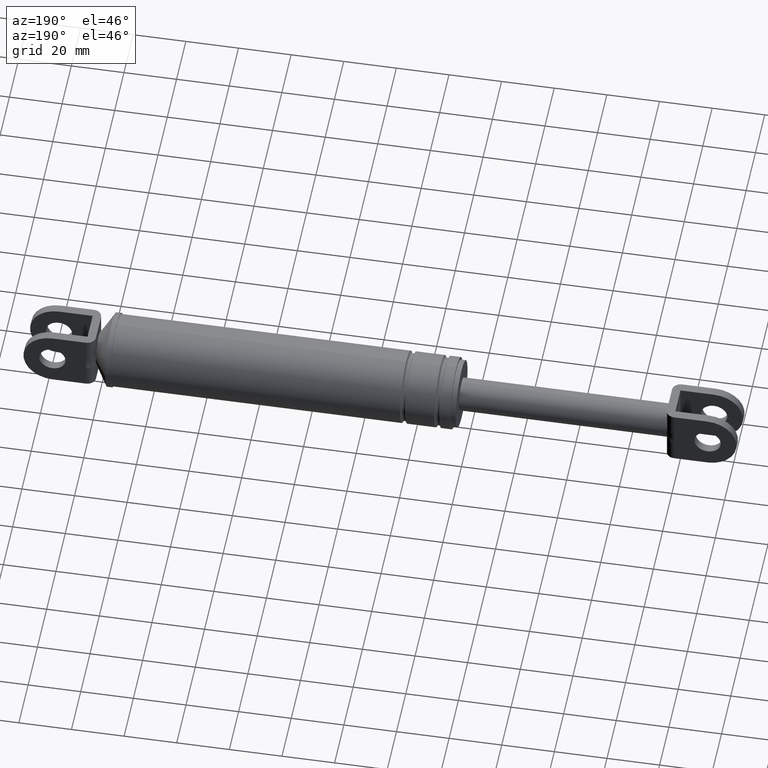
[diagram: clean part render]
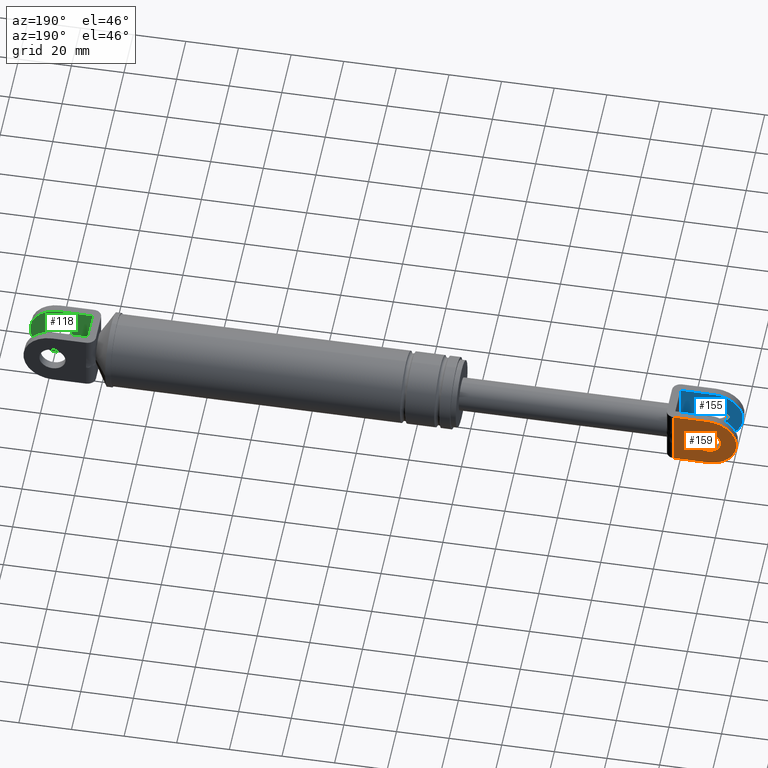
[diagram: same view with three faces highlighted in distinct colors, each labeled with its STEP entity id]
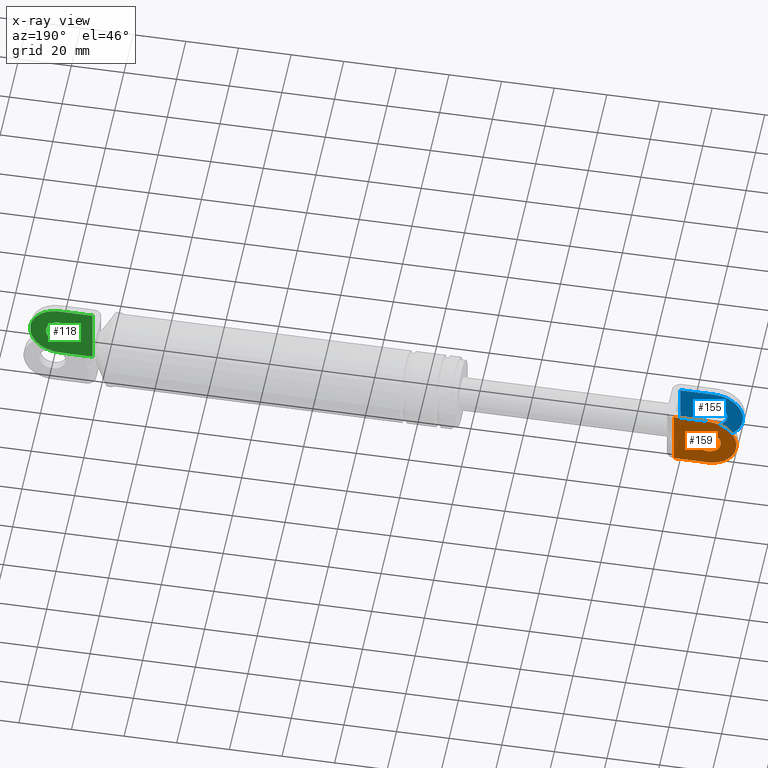
[diagram: x-ray of the same camera — body ghosted, the three highlighted faces saturated]
A machine part, auxiliary view with three faces highlighted in distinct colors.
The next image is the same camera in x-ray (body ghosted, the three faces saturated) — at least one of them is partly hidden behind the body in this view.
Their STEP definitions:

[orange] entity #159 — the highlighted planar face has unit normal (0, -1, 0).
#159=ADVANCED_FACE('',(#654,#655),#653,.F.);
#653=PLANE('',#1265);
#654=FACE_OUTER_BOUND('',#1266,.T.);
#655=FACE_BOUND('',#1267,.T.);
#1262=CARTESIAN_POINT('',(7.50580266010E+001,8.69999700000E+000,1.83929320502E+002));
#1263=DIRECTION('',(0.00000000000E+000,-1.00000000000E+000,0.00000000000E+000));
#1264=DIRECTION('',(0.00000000000E+000,0.00000000000E+000,-1.00000000000E+000));
#1265=AXIS2_PLACEMENT_3D('',#1262,#1263,#1264);
#1266=EDGE_LOOP('',(#1620,#1621,#1622,#1623,#1624,#1625));
#1267=EDGE_LOOP('',(#1626,#1627));
#1620=ORIENTED_EDGE('',*,*,#1808,.T.);
#1621=ORIENTED_EDGE('',*,*,#1837,.T.);
#1622=ORIENTED_EDGE('',*,*,#1838,.T.);
#1623=ORIENTED_EDGE('',*,*,#1839,.T.);
#1624=ORIENTED_EDGE('',*,*,#1834,.F.);
#1625=ORIENTED_EDGE('',*,*,#1840,.F.);
#1626=ORIENTED_EDGE('',*,*,#1841,.T.);
#1627=ORIENTED_EDGE('',*,*,#1842,.T.);
#1808=EDGE_CURVE('',#2583,#2576,#2584,.T.);
#1834=EDGE_CURVE('',#2752,#2759,#2760,.T.);
#1837=EDGE_CURVE('',#2576,#2778,#2779,.T.);
#1838=EDGE_CURVE('',#2778,#2785,#2786,.T.);
#1839=EDGE_CURVE('',#2785,#2759,#2792,.T.);
#1840=EDGE_CURVE('',#2583,#2752,#2798,.T.);
#1841=EDGE_CURVE('',#2804,#2805,#2806,.T.);
#1842=EDGE_CURVE('',#2805,#2804,#2812,.T.);
#2576=VERTEX_POINT('',#3402);
#2583=VERTEX_POINT('',#3407);
#2584=LINE('',#3408,#3409);
#2752=VERTEX_POINT('',#3509);
#2759=VERTEX_POINT('',#3513);
#2760=LINE('',#3514,#3515);
#2778=VERTEX_POINT('',#3524);
#2779=LINE('',#3525,#3526);
#2785=VERTEX_POINT('',#3528);
#2786=(BOUNDED_CURVE() B_SPLINE_CURVE(3,(#3529,#3530,#3531,#3532,#3533,#3534,#3535,#3536,#3537,#3538),.UNSPECIFIED.,.F.,.F.) B_SPLINE_CURVE_WITH_KNOTS((4,2,2,2,4),(0.00000000000E+000,1.48651353192E-003,2.97302706385E-003,4.45954059577E-003,5.94605412770E-003),.UNSPECIFIED.) CURVE() GEOMETRIC_REPRESENTATION_ITEM() RATIONAL_B_SPLINE_CURVE((1.00000000000E+000,1.00000000000E+000,1.00000000000E+000,1.00000000000E+000,1.00000000000E+000,1.00000000000E+000,1.00000000000E+000,1.00000000000E+000,1.00000000000E+000,1.00000000000E+000)) REPRESENTATION_ITEM('') );
#2792=LINE('',#3539,#3540);
#2798=CIRCLE('',#3545,1.10000000000E+001);
#2804=VERTEX_POINT('',#3546);
#2805=VERTEX_POINT('',#3547);
#2806=CIRCLE('',#3551,5.00000000000E+000);
#2812=CIRCLE('',#3555,5.00000000000E+000);
#3402=CARTESIAN_POINT('',(1.01246942787E+002,8.69999700000E+000,1.81729320502E+002));
#3407=CARTESIAN_POINT('',(8.84469418268E+001,8.69999700000E+000,1.81729320502E+002));
#3408=CARTESIAN_POINT('',(8.84469418268E+001,8.69999700000E+000,1.81729320502E+002));
#3409=VECTOR('',#3410,1.28000009599E+001);
#3410=DIRECTION('',(1.00000000000E+000,0.00000000000E+000,0.00000000000E+000));
#3509=CARTESIAN_POINT('',(8.84469418268E+001,8.69999700000E+000,1.59729320502E+002));
#3513=CARTESIAN_POINT('',(1.01246942787E+002,8.69999700000E+000,1.59729320502E+002));
#3514=CARTESIAN_POINT('',(8.84469418268E+001,8.69999700000E+000,1.59729320502E+002));
#3515=VECTOR('',#3516,1.28000009599E+001);
#3516=DIRECTION('',(1.00000000000E+000,0.00000000000E+000,0.00000000000E+000));
#3524=CARTESIAN_POINT('',(1.01246942787E+002,8.69999700000E+000,1.73697911582E+002));
#3525=CARTESIAN_POINT('',(1.01246942787E+002,8.69999700000E+000,1.81729320502E+002));
#3526=VECTOR('',#3527,8.03140892004E+000);
#3527=DIRECTION('',(0.00000000000E+000,0.00000000000E+000,-1.00000000000E+000));
#3528=CARTESIAN_POINT('',(1.01246942787E+002,8.69999700000E+000,1.67760729422E+002));
#3529=CARTESIAN_POINT('',(1.01246942787E+002,8.69999700000E+000,1.73697911582E+002));
#3530=CARTESIAN_POINT('',(1.01246942787E+002,8.69999700000E+000,1.73202405791E+002));
#3531=CARTESIAN_POINT('',(1.01272536968E+002,8.69999700000E+000,1.72707658474E+002));
#3532=CARTESIAN_POINT('',(1.01317789454E+002,8.69999700000E+000,1.71718092325E+002));
#3533=CARTESIAN_POINT('',(1.01336104644E+002,8.69999700000E+000,1.71222857338E+002));
#3534=CARTESIAN_POINT('',(1.01336046205E+002,8.69999700000E+000,1.70233089775E+002));
#3535=CARTESIAN_POINT('',(1.01317706517E+002,8.69999700000E+000,1.69738629714E+002));
#3536=CARTESIAN_POINT('',(1.01272482967E+002,8.69999700000E+000,1.68749907314E+002));
#3537=CARTESIAN_POINT('',(1.01246942787E+002,8.69999700000E+000,1.68255613880E+002));
#3538=CARTESIAN_POINT('',(1.01246942787E+002,8.69999700000E+000,1.67760729422E+002));
#3539=CARTESIAN_POINT('',(1.01246942787E+002,8.69999700000E+000,1.67760729422E+002));
#3540=VECTOR('',#3541,8.03140892004E+000);
#3541=DIRECTION('',(0.00000000000E+000,0.00000000000E+000,-1.00000000000E+000));
#3542=CARTESIAN_POINT('',(8.84469427867E+001,8.69999700000E+000,1.70729320502E+002));
#3543=DIRECTION('',(0.00000000000E+000,-1.00000000000E+000,0.00000000000E+000));
#3544=DIRECTION('',(-0.00000000000E+000,-0.00000000000E+000,-1.00000000000E+000));
#3545=AXIS2_PLACEMENT_3D('',#3542,#3543,#3544);
#3546=CARTESIAN_POINT('',(8.84469427867E+001,8.69999700000E+000,1.75729320502E+002));
#3547=CARTESIAN_POINT('',(8.84469427867E+001,8.69999700000E+000,1.65729320502E+002));
#3548=CARTESIAN_POINT('',(8.84469427867E+001,8.69999700000E+000,1.70729320502E+002));
#3549=DIRECTION('',(-0.00000000000E+000,-1.00000000000E+000,0.00000000000E+000));
#3550=DIRECTION('',(-1.22460635382E-016,0.00000000000E+000,1.00000000000E+000));
#3551=AXIS2_PLACEMENT_3D('',#3548,#3549,#3550);
#3552=CARTESIAN_POINT('',(8.84469427867E+001,8.69999700000E+000,1.70729320502E+002));
#3553=DIRECTION('',(-0.00000000000E+000,-1.00000000000E+000,0.00000000000E+000));
#3554=DIRECTION('',(-1.22460635382E-016,0.00000000000E+000,1.00000000000E+000));
#3555=AXIS2_PLACEMENT_3D('',#3552,#3553,#3554);

[blue] entity #155 — the highlighted planar face has unit normal (0, -1, 0).
#155=ADVANCED_FACE('',(#613,#614),#612,.F.);
#612=PLANE('',#1244);
#613=FACE_OUTER_BOUND('',#1245,.T.);
#614=FACE_BOUND('',#1246,.T.);
#1241=CARTESIAN_POINT('',(7.50669424867E+001,-5.50000000000E+000,1.83929320502E+002));
#1242=DIRECTION('',(0.00000000000E+000,-1.00000000000E+000,0.00000000000E+000));
#1243=DIRECTION('',(0.00000000000E+000,0.00000000000E+000,-1.00000000000E+000));
#1244=AXIS2_PLACEMENT_3D('',#1241,#1242,#1243);
#1245=EDGE_LOOP('',(#1595,#1596,#1597,#1598));
#1246=EDGE_LOOP('',(#1599,#1600));
#1595=ORIENTED_EDGE('',*,*,#1818,.F.);
#1596=ORIENTED_EDGE('',*,*,#1819,.F.);
#1597=ORIENTED_EDGE('',*,*,#1812,.T.);
#1598=ORIENTED_EDGE('',*,*,#1820,.F.);
#1599=ORIENTED_EDGE('',*,*,#1821,.T.);
#1600=ORIENTED_EDGE('',*,*,#1822,.T.);
#1812=EDGE_CURVE('',#2611,#2604,#2612,.T.);
#1818=EDGE_CURVE('',#2650,#2651,#2652,.T.);
#1819=EDGE_CURVE('',#2611,#2650,#2658,.T.);
#1820=EDGE_CURVE('',#2651,#2604,#2664,.T.);
#1821=EDGE_CURVE('',#2670,#2671,#2672,.T.);
#1822=EDGE_CURVE('',#2671,#2670,#2678,.T.);
#2604=VERTEX_POINT('',#3419);
#2611=VERTEX_POINT('',#3423);
#2612=LINE('',#3424,#3425);
#2650=VERTEX_POINT('',#3446);
#2651=VERTEX_POINT('',#3447);
#2652=LINE('',#3448,#3449);
#2658=CIRCLE('',#3454,1.10000000000E+001);
#2664=LINE('',#3455,#3456);
#2670=VERTEX_POINT('',#3458);
#2671=VERTEX_POINT('',#3459);
#2672=CIRCLE('',#3463,5.00000000000E+000);
#2678=CIRCLE('',#3467,5.00000000000E+000);
#3419=CARTESIAN_POINT('',(1.01246945787E+002,-5.50000000000E+000,1.81729320502E+002));
#3423=CARTESIAN_POINT('',(8.84469418268E+001,-5.50000000000E+000,1.81729320502E+002));
#3424=CARTESIAN_POINT('',(8.84469418268E+001,-5.50000000000E+000,1.81729320502E+002));
#3425=VECTOR('',#3426,1.28000039599E+001);
#3426=DIRECTION('',(1.00000000000E+000,0.00000000000E+000,0.00000000000E+000));
#3446=CARTESIAN_POINT('',(8.84469418268E+001,-5.50000000000E+000,1.59729320502E+002));
#3447=CARTESIAN_POINT('',(1.01246945787E+002,-5.50000000000E+000,1.59729320502E+002));
#3448=CARTESIAN_POINT('',(8.84469418268E+001,-5.50000000000E+000,1.59729320502E+002));
#3449=VECTOR('',#3450,1.28000039599E+001);
#3450=DIRECTION('',(1.00000000000E+000,0.00000000000E+000,0.00000000000E+000));
#3451=CARTESIAN_POINT('',(8.84469427867E+001,-5.50000000000E+000,1.70729320502E+002));
#3452=DIRECTION('',(0.00000000000E+000,-1.00000000000E+000,0.00000000000E+000));
#3453=DIRECTION('',(-0.00000000000E+000,-0.00000000000E+000,1.00000000000E+000));
#3454=AXIS2_PLACEMENT_3D('',#3451,#3452,#3453);
#3455=CARTESIAN_POINT('',(1.01246945787E+002,-5.50000000000E+000,1.59729320502E+002));
#3456=VECTOR('',#3457,2.20000000000E+001);
#3457=DIRECTION('',(0.00000000000E+000,0.00000000000E+000,1.00000000000E+000));
#3458=CARTESIAN_POINT('',(8.84469427867E+001,-5.50000000000E+000,1.65729320502E+002));
#3459=CARTESIAN_POINT('',(8.84469427867E+001,-5.50000000000E+000,1.75729320502E+002));
#3460=CARTESIAN_POINT('',(8.84469427867E+001,-5.50000000000E+000,1.70729320502E+002));
#3461=DIRECTION('',(0.00000000000E+000,-1.00000000000E+000,-0.00000000000E+000));
#3462=DIRECTION('',(-1.22460635382E-016,0.00000000000E+000,-1.00000000000E+000));
#3463=AXIS2_PLACEMENT_3D('',#3460,#3461,#3462);
#3464=CARTESIAN_POINT('',(8.84469427867E+001,-5.50000000000E+000,1.70729320502E+002));
#3465=DIRECTION('',(0.00000000000E+000,-1.00000000000E+000,-0.00000000000E+000));
#3466=DIRECTION('',(-1.22460635382E-016,0.00000000000E+000,-1.00000000000E+000));
#3467=AXIS2_PLACEMENT_3D('',#3464,#3465,#3466);

[green] entity #118 — the highlighted planar face has unit normal (0, -1, 0).
#118=ADVANCED_FACE('',(#238,#239),#237,.F.);
#237=PLANE('',#912);
#238=FACE_OUTER_BOUND('',#913,.T.);
#239=FACE_BOUND('',#914,.T.);
#909=CARTESIAN_POINT('',(3.22266955939E+002,-5.50000000000E+000,1.83929320598E+002));
#910=DIRECTION('',(0.00000000000E+000,-1.00000000000E+000,0.00000000000E+000));
#911=DIRECTION('',(0.00000000000E+000,0.00000000000E+000,-1.00000000000E+000));
#912=AXIS2_PLACEMENT_3D('',#909,#910,#911);
#913=EDGE_LOOP('',(#1406,#1407,#1408,#1409));
#914=EDGE_LOOP('',(#1410,#1411));
#1406=ORIENTED_EDGE('',*,*,#1724,.F.);
#1407=ORIENTED_EDGE('',*,*,#1725,.T.);
#1408=ORIENTED_EDGE('',*,*,#1726,.F.);
#1409=ORIENTED_EDGE('',*,*,#1727,.F.);
#1410=ORIENTED_EDGE('',*,*,#1728,.T.);
#1411=ORIENTED_EDGE('',*,*,#1729,.T.);
#1724=EDGE_CURVE('',#2025,#2026,#2027,.T.);
#1725=EDGE_CURVE('',#2025,#2033,#2034,.T.);
#1726=EDGE_CURVE('',#2040,#2033,#2041,.T.);
#1727=EDGE_CURVE('',#2026,#2040,#2047,.T.);
#1728=EDGE_CURVE('',#2053,#2054,#2055,.T.);
#1729=EDGE_CURVE('',#2054,#2053,#2061,.T.);
#2025=VERTEX_POINT('',#3057);
#2026=VERTEX_POINT('',#3058);
#2027=CIRCLE('',#3062,1.10000000000E+001);
#2033=VERTEX_POINT('',#3063);
#2034=LINE('',#3064,#3065);
#2040=VERTEX_POINT('',#3067);
#2041=LINE('',#3068,#3069);
#2047=LINE('',#3071,#3072);
#2053=VERTEX_POINT('',#3074);
#2054=VERTEX_POINT('',#3075);
#2055=CIRCLE('',#3079,5.00000000000E+000);
#2061=CIRCLE('',#3083,5.00000000000E+000);
#3057=CARTESIAN_POINT('',(3.37446941827E+002,-5.50000000000E+000,1.59729320502E+002));
#3058=CARTESIAN_POINT('',(3.37446942787E+002,-5.50000000000E+000,1.81729320502E+002));
#3059=CARTESIAN_POINT('',(3.37446942787E+002,-5.50000000000E+000,1.70729320502E+002));
#3060=DIRECTION('',(0.00000000000E+000,-1.00000000000E+000,0.00000000000E+000));
#3061=DIRECTION('',(-0.00000000000E+000,-0.00000000000E+000,1.00000000000E+000));
#3062=AXIS2_PLACEMENT_3D('',#3059,#3060,#3061);
#3063=CARTESIAN_POINT('',(3.24646954787E+002,-5.50000000000E+000,1.59729320502E+002));
#3064=CARTESIAN_POINT('',(3.37446941827E+002,-5.50000000000E+000,1.59729320502E+002));
#3065=VECTOR('',#3066,1.27999870401E+001);
#3066=DIRECTION('',(-1.00000000000E+000,0.00000000000E+000,0.00000000000E+000));
#3067=CARTESIAN_POINT('',(3.24646954787E+002,-5.50000000000E+000,1.81729320502E+002));
#3068=CARTESIAN_POINT('',(3.24646954787E+002,-5.50000000000E+000,1.81729320502E+002));
#3069=VECTOR('',#3070,2.20000000000E+001);
#3070=DIRECTION('',(0.00000000000E+000,0.00000000000E+000,-1.00000000000E+000));
#3071=CARTESIAN_POINT('',(3.37446942787E+002,-5.50000000000E+000,1.81729320502E+002));
#3072=VECTOR('',#3073,1.27999880000E+001);
#3073=DIRECTION('',(-1.00000000000E+000,0.00000000000E+000,0.00000000000E+000));
#3074=CARTESIAN_POINT('',(3.37446942787E+002,-5.50000000000E+000,1.65729320502E+002));
#3075=CARTESIAN_POINT('',(3.37446942787E+002,-5.50000000000E+000,1.75729320502E+002));
#3076=CARTESIAN_POINT('',(3.37446942787E+002,-5.50000000000E+000,1.70729320502E+002));
#3077=DIRECTION('',(0.00000000000E+000,-1.00000000000E+000,-0.00000000000E+000));
#3078=DIRECTION('',(-1.22460635382E-016,0.00000000000E+000,-1.00000000000E+000));
#3079=AXIS2_PLACEMENT_3D('',#3076,#3077,#3078);
#3080=CARTESIAN_POINT('',(3.37446942787E+002,-5.50000000000E+000,1.70729320502E+002));
#3081=DIRECTION('',(0.00000000000E+000,-1.00000000000E+000,-0.00000000000E+000));
#3082=DIRECTION('',(-1.22460635382E-016,0.00000000000E+000,-1.00000000000E+000));
#3083=AXIS2_PLACEMENT_3D('',#3080,#3081,#3082);